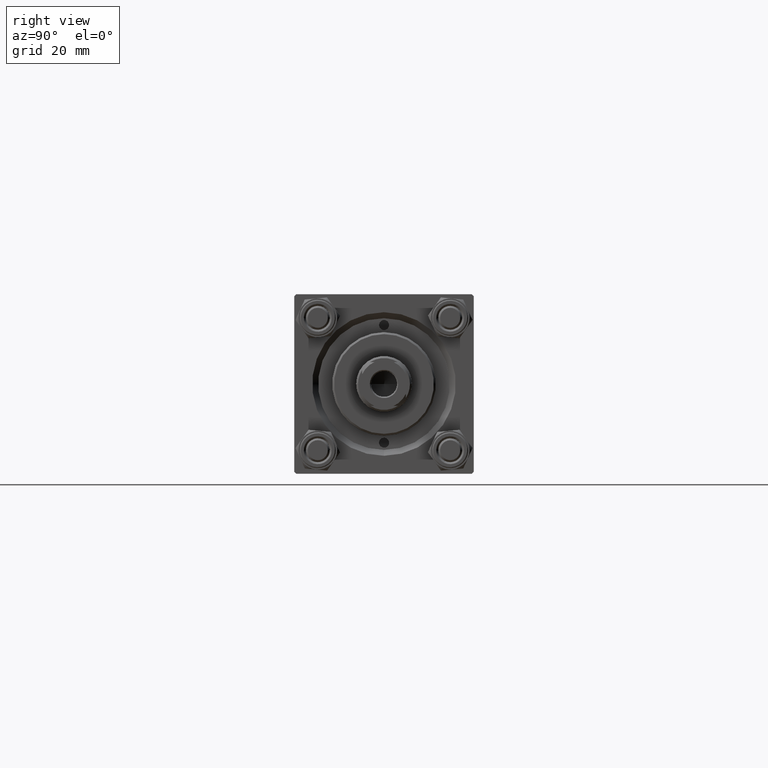
[diagram: clean part render]
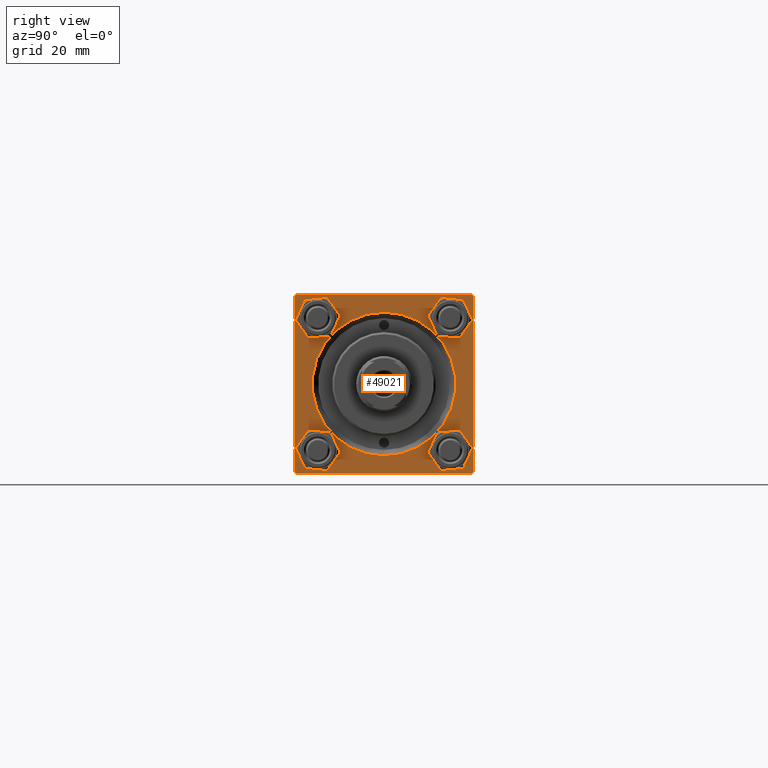
[diagram: same view with one face highlighted and labeled with its STEP entity id]
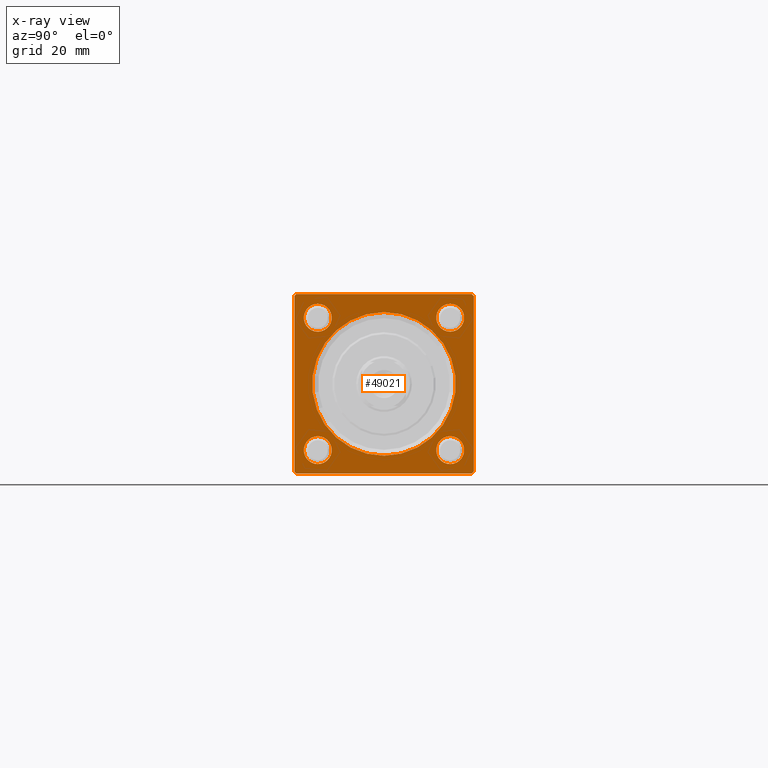
[diagram: x-ray of the same camera — body ghosted, the highlighted face saturated]
A machine part, right view. The second image highlights one B-rep face of the part: STEP entity #49021.
The next image is the same camera in x-ray: the body ghosted, the highlighted face saturated — about 0% of this face is hidden behind the body in this view.
In plain terms, the highlighted planar face has unit normal (-1, 0, 0).
Its self-contained STEP definition (entity closure, byte-faithful):
#131 = LINE ( 'NONE', #49984, #1691 ) ;
#869 = CIRCLE ( 'NONE', #3296, 3.500000000000031086 ) ;
#1224 = CARTESIAN_POINT ( 'NONE',  ( 123.0000000000000142, -16.59999999999999076, 13.09999999999997655 ) ) ;
#1691 = VECTOR ( 'NONE', #11031, 1000.000000000000000 ) ;
#1978 = VECTOR ( 'NONE', #21732, 1000.000000000000000 ) ;
#2134 = VERTEX_POINT ( 'NONE', #41531 ) ;
#2316 = FACE_BOUND ( 'NONE', #8492, .T. ) ;
#2478 = CARTESIAN_POINT ( 'NONE',  ( 123.0000000000000142, -22.49999999999999645, 22.49999999999999289 ) ) ;
#2585 = VERTEX_POINT ( 'NONE', #5413 ) ;
#3270 = DIRECTION ( 'NONE',  ( -1.000000000000000000, 0.000000000000000000, -0.000000000000000000 ) ) ;
#3296 = AXIS2_PLACEMENT_3D ( 'NONE', #34068, #11754, #49493 ) ;
#4065 = CARTESIAN_POINT ( 'NONE',  ( 123.0000000000000142, -16.59999999999999076, -20.10000000000003695 ) ) ;
#4632 = VERTEX_POINT ( 'NONE', #39137 ) ;
#4930 = AXIS2_PLACEMENT_3D ( 'NONE', #10562, #29819, #14857 ) ;
#5106 = DIRECTION ( 'NONE',  ( -0.000000000000000000, 0.000000000000000000, 1.000000000000000000 ) ) ;
#5391 = ORIENTED_EDGE ( 'NONE', *, *, #21130, .T. ) ;
#5413 = CARTESIAN_POINT ( 'NONE',  ( 123.0000000000000142, -22.49999999999999645, -21.99999999999997868 ) ) ;
#5960 = DIRECTION ( 'NONE',  ( -0.000000000000000000, 0.7071067811865573427, 0.7071067811865378028 ) ) ;
#6653 = VECTOR ( 'NONE', #5960, 1000.000000000000000 ) ;
#7831 = CARTESIAN_POINT ( 'NONE',  ( 123.0000000000000142, 16.59999999999999787, 16.60000000000000497 ) ) ;
#8040 = ORIENTED_EDGE ( 'NONE', *, *, #40352, .T. ) ;
#8072 = VECTOR ( 'NONE', #48785, 1000.000000000000000 ) ;
#8485 = VERTEX_POINT ( 'NONE', #42226 ) ;
#8492 = EDGE_LOOP ( 'NONE', ( #8040, #32304 ) ) ;
#9232 = CARTESIAN_POINT ( 'NONE',  ( 123.0000000000000142, -16.59999999999999076, -16.60000000000000853 ) ) ;
#9350 = LINE ( 'NONE', #16438, #32550 ) ;
#9855 = DIRECTION ( 'NONE',  ( 0.000000000000000000, 0.000000000000000000, 1.000000000000000000 ) ) ;
#9885 = AXIS2_PLACEMENT_3D ( 'NONE', #34038, #30251, #29051 ) ;
#9938 = DIRECTION ( 'NONE',  ( 0.000000000000000000, -0.7071067811865573427, 0.7071067811865378028 ) ) ;
#10518 = CIRCLE ( 'NONE', #18601, 18.00000000000000355 ) ;
#10562 = CARTESIAN_POINT ( 'NONE',  ( 123.0000000000000142, 16.59999999999999787, -16.60000000000000497 ) ) ;
#11031 = DIRECTION ( 'NONE',  ( 0.000000000000000000, -1.000000000000000000, -2.312964634635742957E-16 ) ) ;
#11071 = CARTESIAN_POINT ( 'NONE',  ( 123.0000000000000142, 0.000000000000000000, 0.000000000000000000 ) ) ;
#11754 = DIRECTION ( 'NONE',  ( -1.000000000000000000, 0.000000000000000000, -0.000000000000000000 ) ) ;
#12207 = EDGE_CURVE ( 'NONE', #35962, #21527, #34052, .T. ) ;
#12681 = DIRECTION ( 'NONE',  ( 0.000000000000000000, 0.000000000000000000, 1.000000000000000000 ) ) ;
#12947 = CARTESIAN_POINT ( 'NONE',  ( 123.0000000000000142, 0.000000000000000000, 0.000000000000000000 ) ) ;
#12963 = CIRCLE ( 'NONE', #19431, 3.500000000000031086 ) ;
#13604 = CARTESIAN_POINT ( 'NONE',  ( 123.0000000000000142, 22.50000000000000355, 21.99999999999997513 ) ) ;
#13751 = CARTESIAN_POINT ( 'NONE',  ( 123.0000000000000142, 21.99999999999996092, 22.50000000000000355 ) ) ;
#14714 = EDGE_LOOP ( 'NONE', ( #46666, #38783 ) ) ;
#14857 = DIRECTION ( 'NONE',  ( 0.000000000000000000, 0.000000000000000000, 1.000000000000000000 ) ) ;
#14931 = EDGE_CURVE ( 'NONE', #21823, #2585, #30081, .T. ) ;
#15903 = EDGE_CURVE ( 'NONE', #36260, #44572, #131, .T. ) ;
#16122 = CARTESIAN_POINT ( 'NONE',  ( 123.0000000000000142, 16.59999999999999787, -16.60000000000000497 ) ) ;
#16438 = CARTESIAN_POINT ( 'NONE',  ( 123.0000000000000142, -21.99999999999999645, -22.50000000000000000 ) ) ;
#16741 = FACE_BOUND ( 'NONE', #14714, .T. ) ;
#17096 = DIRECTION ( 'NONE',  ( 0.000000000000000000, 0.000000000000000000, 1.000000000000000000 ) ) ;
#17437 = VERTEX_POINT ( 'NONE', #33415 ) ;
#17597 = CARTESIAN_POINT ( 'NONE',  ( 123.0000000000000142, -16.59999999999999076, -13.09999999999997655 ) ) ;
#17621 = EDGE_CURVE ( 'NONE', #48556, #49418, #38075, .T. ) ;
#18419 = CARTESIAN_POINT ( 'NONE',  ( 123.0000000000000142, 16.59999999999999787, -13.09999999999997300 ) ) ;
#18601 = AXIS2_PLACEMENT_3D ( 'NONE', #11071, #22719, #38142 ) ;
#19161 = ORIENTED_EDGE ( 'NONE', *, *, #20757, .T. ) ;
#19219 = EDGE_CURVE ( 'NONE', #8485, #4632, #43012, .T. ) ;
#19431 = AXIS2_PLACEMENT_3D ( 'NONE', #39254, #31679, #12681 ) ;
#19928 = DIRECTION ( 'NONE',  ( 0.000000000000000000, 0.000000000000000000, 1.000000000000000000 ) ) ;
#20034 = ORIENTED_EDGE ( 'NONE', *, *, #21298, .F. ) ;
#20134 = CARTESIAN_POINT ( 'NONE',  ( 123.0000000000000142, 22.00000000000000355, -22.49999999999999645 ) ) ;
#20258 = AXIS2_PLACEMENT_3D ( 'NONE', #21164, #40650, #17096 ) ;
#20757 = EDGE_CURVE ( 'NONE', #4632, #8485, #21236, .T. ) ;
#20954 = VECTOR ( 'NONE', #9938, 1000.000000000000000 ) ;
#21130 = EDGE_CURVE ( 'NONE', #25719, #42148, #41435, .T. ) ;
#21164 = CARTESIAN_POINT ( 'NONE',  ( 123.0000000000000142, -16.59999999999999076, 16.60000000000000853 ) ) ;
#21236 = CIRCLE ( 'NONE', #40601, 3.500000000000031086 ) ;
#21298 = EDGE_CURVE ( 'NONE', #34744, #33022, #47639, .T. ) ;
#21527 = VERTEX_POINT ( 'NONE', #4065 ) ;
#21732 = DIRECTION ( 'NONE',  ( 0.000000000000000000, -1.000000000000000000, -7.709882115452476934E-17 ) ) ;
#21823 = VERTEX_POINT ( 'NONE', #23021 ) ;
#22054 = CARTESIAN_POINT ( 'NONE',  ( 123.0000000000000142, -21.99999999999998224, 22.49999999999999289 ) ) ;
#22719 = DIRECTION ( 'NONE',  ( -1.000000000000000000, 0.000000000000000000, -0.000000000000000000 ) ) ;
#22840 = VECTOR ( 'NONE', #36262, 1000.000000000000000 ) ;
#23021 = CARTESIAN_POINT ( 'NONE',  ( 123.0000000000000142, -22.49999999999999645, 22.00000000000000711 ) ) ;
#24950 = LINE ( 'NONE', #44409, #6653 ) ;
#25363 = FACE_BOUND ( 'NONE', #43298, .T. ) ;
#25390 = CARTESIAN_POINT ( 'NONE',  ( 123.0000000000000142, 21.99999999999996092, 22.50000000000000355 ) ) ;
#25719 = VERTEX_POINT ( 'NONE', #34687 ) ;
#26059 = CARTESIAN_POINT ( 'NONE',  ( 123.0000000000000142, 16.59999999999999787, -20.10000000000003340 ) ) ;
#26761 = AXIS2_PLACEMENT_3D ( 'NONE', #9232, #36315, #27999 ) ;
#26822 = ORIENTED_EDGE ( 'NONE', *, *, #15903, .T. ) ;
#27034 = VERTEX_POINT ( 'NONE', #1224 ) ;
#27096 = DIRECTION ( 'NONE',  ( 0.000000000000000000, 0.000000000000000000, 1.000000000000000000 ) ) ;
#27774 = EDGE_CURVE ( 'NONE', #34744, #36260, #38020, .T. ) ;
#27905 = AXIS2_PLACEMENT_3D ( 'NONE', #12947, #35996, #5106 ) ;
#27915 = ORIENTED_EDGE ( 'NONE', *, *, #29528, .T. ) ;
#27990 = EDGE_CURVE ( 'NONE', #44572, #21823, #32167, .T. ) ;
#27999 = DIRECTION ( 'NONE',  ( 0.000000000000000000, 0.000000000000000000, 1.000000000000000000 ) ) ;
#28385 = ORIENTED_EDGE ( 'NONE', *, *, #44956, .F. ) ;
#28413 = FACE_BOUND ( 'NONE', #29915, .T. ) ;
#29051 = DIRECTION ( 'NONE',  ( 0.000000000000000000, 0.000000000000000000, 1.000000000000000000 ) ) ;
#29087 = LINE ( 'NONE', #32622, #1978 ) ;
#29279 = AXIS2_PLACEMENT_3D ( 'NONE', #7831, #34922, #27096 ) ;
#29419 = EDGE_LOOP ( 'NONE', ( #48876, #46195, #28385, #41062, #20034, #46935, #26822, #46589 ) ) ;
#29528 = EDGE_CURVE ( 'NONE', #42148, #25719, #10518, .T. ) ;
#29819 = DIRECTION ( 'NONE',  ( -1.000000000000000000, 0.000000000000000000, -0.000000000000000000 ) ) ;
#29915 = EDGE_LOOP ( 'NONE', ( #5391, #27915 ) ) ;
#30081 = LINE ( 'NONE', #2478, #8072 ) ;
#30251 = DIRECTION ( 'NONE',  ( -1.000000000000000000, 0.000000000000000000, -0.000000000000000000 ) ) ;
#31058 = EDGE_CURVE ( 'NONE', #21527, #35962, #12963, .T. ) ;
#31474 = VECTOR ( 'NONE', #43798, 1000.000000000000000 ) ;
#31679 = DIRECTION ( 'NONE',  ( -1.000000000000000000, 0.000000000000000000, -0.000000000000000000 ) ) ;
#32167 = LINE ( 'NONE', #36212, #31474 ) ;
#32304 = ORIENTED_EDGE ( 'NONE', *, *, #17621, .T. ) ;
#32550 = VECTOR ( 'NONE', #48315, 999.9999999999998863 ) ;
#32622 = CARTESIAN_POINT ( 'NONE',  ( 123.0000000000000142, 22.50000000000000355, -22.49999999999999645 ) ) ;
#33022 = VERTEX_POINT ( 'NONE', #42220 ) ;
#33205 = FACE_BOUND ( 'NONE', #40346, .T. ) ;
#33415 = CARTESIAN_POINT ( 'NONE',  ( 123.0000000000000142, -16.59999999999999076, 20.10000000000003695 ) ) ;
#34038 = CARTESIAN_POINT ( 'NONE',  ( 123.0000000000000142, 0.000000000000000000, 0.000000000000000000 ) ) ;
#34052 = CIRCLE ( 'NONE', #26761, 3.500000000000031086 ) ;
#34068 = CARTESIAN_POINT ( 'NONE',  ( 123.0000000000000142, -16.59999999999999076, 16.60000000000000853 ) ) ;
#34687 = CARTESIAN_POINT ( 'NONE',  ( 123.0000000000000142, 0.000000000000000000, -18.00000000000000355 ) ) ;
#34744 = VERTEX_POINT ( 'NONE', #13604 ) ;
#34922 = DIRECTION ( 'NONE',  ( -1.000000000000000000, 0.000000000000000000, -0.000000000000000000 ) ) ;
#34973 = CIRCLE ( 'NONE', #49544, 3.500000000000031086 ) ;
#35242 = EDGE_CURVE ( 'NONE', #17437, #27034, #869, .T. ) ;
#35748 = EDGE_CURVE ( 'NONE', #27034, #17437, #40463, .T. ) ;
#35962 = VERTEX_POINT ( 'NONE', #17597 ) ;
#35996 = DIRECTION ( 'NONE',  ( -1.000000000000000000, 0.000000000000000000, -0.000000000000000000 ) ) ;
#36212 = CARTESIAN_POINT ( 'NONE',  ( 123.0000000000000142, -22.49999999999999645, 22.00000000000000711 ) ) ;
#36260 = VERTEX_POINT ( 'NONE', #13751 ) ;
#36262 = DIRECTION ( 'NONE',  ( 0.000000000000000000, 0.000000000000000000, -1.000000000000000000 ) ) ;
#36315 = DIRECTION ( 'NONE',  ( -1.000000000000000000, 0.000000000000000000, -0.000000000000000000 ) ) ;
#38020 = LINE ( 'NONE', #25390, #20954 ) ;
#38075 = CIRCLE ( 'NONE', #4930, 3.500000000000031086 ) ;
#38142 = DIRECTION ( 'NONE',  ( 0.000000000000000000, 0.000000000000000000, 1.000000000000000000 ) ) ;
#38783 = ORIENTED_EDGE ( 'NONE', *, *, #12207, .T. ) ;
#38973 = ORIENTED_EDGE ( 'NONE', *, *, #19219, .T. ) ;
#39137 = CARTESIAN_POINT ( 'NONE',  ( 123.0000000000000142, 16.59999999999999787, 13.09999999999997300 ) ) ;
#39254 = CARTESIAN_POINT ( 'NONE',  ( 123.0000000000000142, -16.59999999999999076, -16.60000000000000853 ) ) ;
#39664 = EDGE_CURVE ( 'NONE', #42989, #33022, #24950, .T. ) ;
#40038 = PLANE ( 'NONE',  #27905 ) ;
#40147 = EDGE_CURVE ( 'NONE', #2585, #2134, #9350, .T. ) ;
#40346 = EDGE_LOOP ( 'NONE', ( #19161, #38973 ) ) ;
#40352 = EDGE_CURVE ( 'NONE', #49418, #48556, #34973, .T. ) ;
#40463 = CIRCLE ( 'NONE', #20258, 3.500000000000031086 ) ;
#40601 = AXIS2_PLACEMENT_3D ( 'NONE', #41232, #3270, #9855 ) ;
#40650 = DIRECTION ( 'NONE',  ( -1.000000000000000000, 0.000000000000000000, -0.000000000000000000 ) ) ;
#41062 = ORIENTED_EDGE ( 'NONE', *, *, #39664, .T. ) ;
#41232 = CARTESIAN_POINT ( 'NONE',  ( 123.0000000000000142, 16.59999999999999787, 16.60000000000000497 ) ) ;
#41435 = CIRCLE ( 'NONE', #9885, 18.00000000000000355 ) ;
#41531 = CARTESIAN_POINT ( 'NONE',  ( 123.0000000000000142, -21.99999999999998224, -22.50000000000000000 ) ) ;
#42148 = VERTEX_POINT ( 'NONE', #47335 ) ;
#42220 = CARTESIAN_POINT ( 'NONE',  ( 123.0000000000000142, 22.50000000000000355, -21.99999999999999645 ) ) ;
#42226 = CARTESIAN_POINT ( 'NONE',  ( 123.0000000000000142, 16.59999999999999787, 20.10000000000003340 ) ) ;
#42989 = VERTEX_POINT ( 'NONE', #20134 ) ;
#43012 = CIRCLE ( 'NONE', #29279, 3.500000000000031086 ) ;
#43298 = EDGE_LOOP ( 'NONE', ( #43894, #44383 ) ) ;
#43798 = DIRECTION ( 'NONE',  ( -0.000000000000000000, -0.7071067811865573427, -0.7071067811865378028 ) ) ;
#43894 = ORIENTED_EDGE ( 'NONE', *, *, #35748, .T. ) ;
#44383 = ORIENTED_EDGE ( 'NONE', *, *, #35242, .T. ) ;
#44409 = CARTESIAN_POINT ( 'NONE',  ( 123.0000000000000142, 22.50000000000000355, -22.00000000000001066 ) ) ;
#44572 = VERTEX_POINT ( 'NONE', #22054 ) ;
#44956 = EDGE_CURVE ( 'NONE', #42989, #2134, #29087, .T. ) ;
#46016 = DIRECTION ( 'NONE',  ( -1.000000000000000000, 0.000000000000000000, -0.000000000000000000 ) ) ;
#46195 = ORIENTED_EDGE ( 'NONE', *, *, #40147, .T. ) ;
#46589 = ORIENTED_EDGE ( 'NONE', *, *, #27990, .T. ) ;
#46666 = ORIENTED_EDGE ( 'NONE', *, *, #31058, .T. ) ;
#46935 = ORIENTED_EDGE ( 'NONE', *, *, #27774, .T. ) ;
#47335 = CARTESIAN_POINT ( 'NONE',  ( 123.0000000000000142, 2.204364238465235822E-15, 18.00000000000000355 ) ) ;
#47622 = FACE_OUTER_BOUND ( 'NONE', #29419, .T. ) ;
#47639 = LINE ( 'NONE', #47895, #22840 ) ;
#47895 = CARTESIAN_POINT ( 'NONE',  ( 123.0000000000000142, 22.50000000000000355, 22.50000000000000355 ) ) ;
#48315 = DIRECTION ( 'NONE',  ( 0.000000000000000000, 0.7071067811865425767, -0.7071067811865525687 ) ) ;
#48556 = VERTEX_POINT ( 'NONE', #18419 ) ;
#48785 = DIRECTION ( 'NONE',  ( 0.000000000000000000, 0.000000000000000000, -1.000000000000000000 ) ) ;
#48876 = ORIENTED_EDGE ( 'NONE', *, *, #14931, .T. ) ;
#49021 = ADVANCED_FACE ( 'NONE', ( #16741, #2316, #33205, #25363, #28413, #47622 ), #40038, .F. ) ;
#49418 = VERTEX_POINT ( 'NONE', #26059 ) ;
#49493 = DIRECTION ( 'NONE',  ( 0.000000000000000000, 0.000000000000000000, 1.000000000000000000 ) ) ;
#49544 = AXIS2_PLACEMENT_3D ( 'NONE', #16122, #46016, #19928 ) ;
#49984 = CARTESIAN_POINT ( 'NONE',  ( 123.0000000000000142, 22.50000000000000355, 22.50000000000000355 ) ) ;